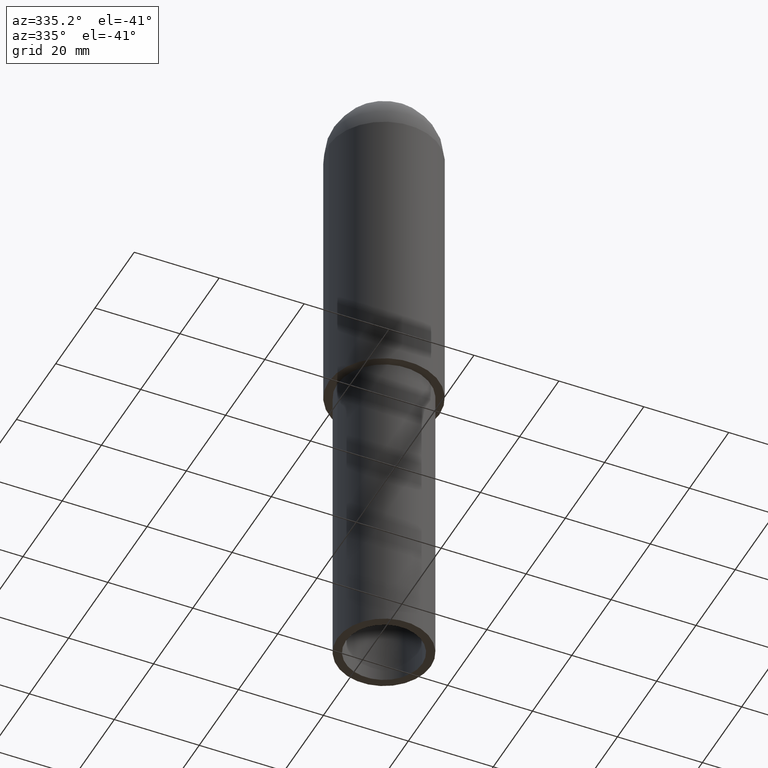
[diagram: clean part render]
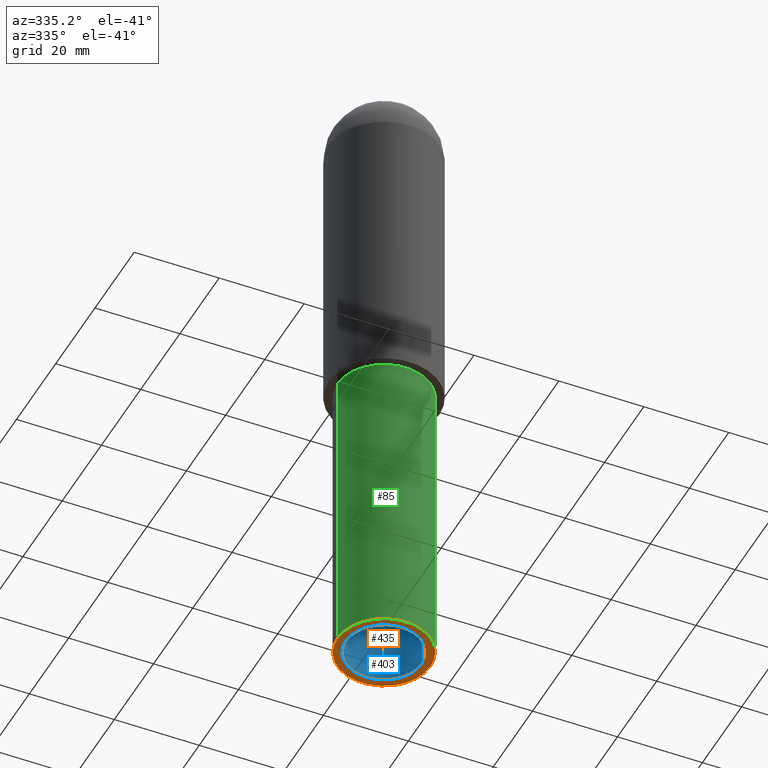
[diagram: same view with three faces highlighted in distinct colors, each labeled with its STEP entity id]
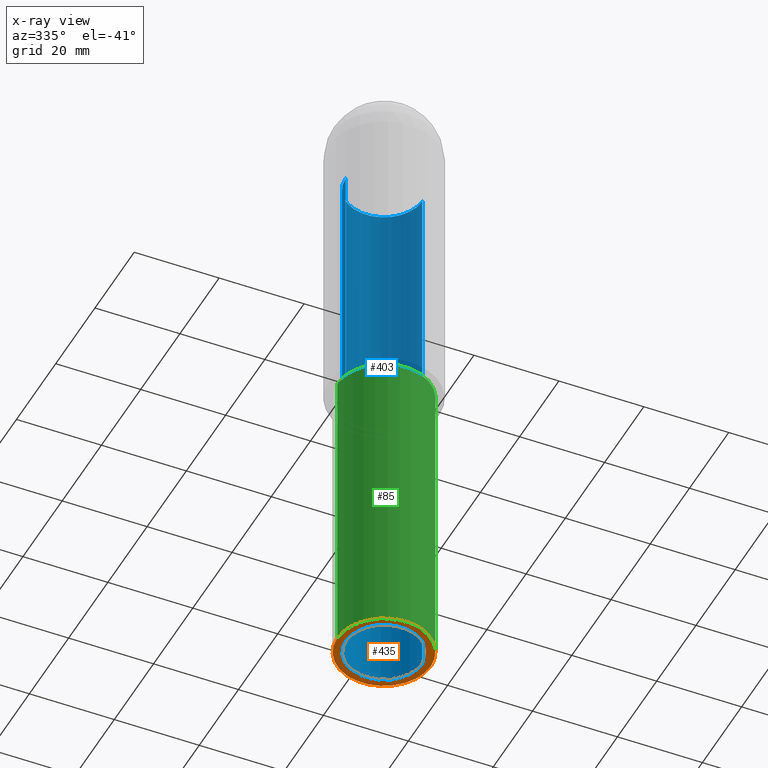
[diagram: x-ray of the same camera — body ghosted, the three highlighted faces saturated]
A machine part, auxiliary view with three faces highlighted in distinct colors.
The next image is the same camera in x-ray (body ghosted, the three faces saturated) — at least one of them is partly hidden behind the body in this view.
Their STEP definitions:

[orange] entity #435 — the highlighted planar face has unit normal (0, 0, -1).
#49=CARTESIAN_POINT('',(-6.716946060098080,-1.613904443833870,0.0));
#50=VERTEX_POINT('',#49);
#59=CARTESIAN_POINT('',(15.283053939901921,-1.613904443833870,0.0));
#60=VERTEX_POINT('',#59);
#61=CARTESIAN_POINT('',(4.283053939901920,-1.613904443833871,0.0));
#62=DIRECTION('',(0.0,0.0,-1.0));
#63=DIRECTION('',(-1.0,0.0,0.0));
#64=AXIS2_PLACEMENT_3D('',#61,#62,#63);
#65=CIRCLE('',#64,11.0);
#66=EDGE_CURVE('',#60,#50,#65,.T.);
#93=CARTESIAN_POINT('',(-4.716946060098080,-1.613904443833870,0.0));
#94=VERTEX_POINT('',#93);
#110=CARTESIAN_POINT('',(13.283053939901919,-1.613904443833870,0.0));
#111=VERTEX_POINT('',#110);
#118=CARTESIAN_POINT('',(4.283053939901920,-1.613904443833871,0.0));
#119=DIRECTION('',(0.0,0.0,1.0));
#120=DIRECTION('',(-1.0,0.0,0.0));
#121=AXIS2_PLACEMENT_3D('',#118,#119,#120);
#122=CIRCLE('',#121,9.0);
#123=EDGE_CURVE('',#94,#111,#122,.T.);
#392=CARTESIAN_POINT('',(4.283053939901920,-1.613904443833871,0.0));
#393=DIRECTION('',(0.0,0.0,1.0));
#394=DIRECTION('',(-1.0,0.0,0.0));
#395=AXIS2_PLACEMENT_3D('',#392,#393,#394);
#396=CIRCLE('',#395,9.0);
#397=EDGE_CURVE('',#111,#94,#396,.T.);
#412=CARTESIAN_POINT('',(4.283053939901920,-1.613904443833871,0.0));
#413=DIRECTION('',(0.0,0.0,-1.0));
#414=DIRECTION('',(-1.0,0.0,0.0));
#415=AXIS2_PLACEMENT_3D('',#412,#413,#414);
#416=CIRCLE('',#415,11.0);
#417=EDGE_CURVE('',#50,#60,#416,.T.);
#422=CARTESIAN_POINT('',(4.283053939901920,-1.613904443833871,0.0));
#423=DIRECTION('',(0.0,0.0,-1.0));
#424=DIRECTION('',(-1.0,0.0,0.0));
#425=AXIS2_PLACEMENT_3D('',#422,#423,#424);
#426=PLANE('',#425);
#427=ORIENTED_EDGE('',*,*,#66,.T.);
#428=ORIENTED_EDGE('',*,*,#417,.T.);
#429=EDGE_LOOP('',(#427,#428));
#430=FACE_OUTER_BOUND('',#429,.T.);
#431=ORIENTED_EDGE('',*,*,#397,.T.);
#432=ORIENTED_EDGE('',*,*,#123,.T.);
#433=EDGE_LOOP('',(#431,#432));
#434=FACE_BOUND('',#433,.T.);
#435=ADVANCED_FACE('',(#430,#434),#426,.T.);

[blue] entity #403 — the highlighted cylindrical surface (partial cylindrical patch) has radius 9 mm, axis along (0, 0, 1).
#91=CARTESIAN_POINT('',(-4.716946060098080,-1.613904443833870,131.0));
#92=VERTEX_POINT('',#91);
#93=CARTESIAN_POINT('',(-4.716946060098080,-1.613904443833870,0.0));
#94=VERTEX_POINT('',#93);
#95=CARTESIAN_POINT('',(-4.716946060098080,-1.613904443833870,131.0));
#96=DIRECTION('',(0.0,0.0,-1.0));
#97=VECTOR('',#96,131.0);
#98=LINE('',#95,#97);
#99=EDGE_CURVE('',#92,#94,#98,.T.);
#101=CARTESIAN_POINT('',(13.283053939901919,-1.613904443833870,131.0));
#102=VERTEX_POINT('',#101);
#110=CARTESIAN_POINT('',(13.283053939901919,-1.613904443833870,0.0));
#111=VERTEX_POINT('',#110);
#112=CARTESIAN_POINT('',(13.283053939901919,-1.613904443833870,0.0));
#113=DIRECTION('',(0.0,0.0,1.0));
#114=VECTOR('',#113,131.0);
#115=LINE('',#112,#114);
#116=EDGE_CURVE('',#111,#102,#115,.T.);
#375=CARTESIAN_POINT('',(4.283053939901920,-1.613904443833871,131.0));
#376=DIRECTION('',(0.0,0.0,1.0));
#377=DIRECTION('',(-1.0,0.0,0.0));
#378=AXIS2_PLACEMENT_3D('',#375,#376,#377);
#379=CIRCLE('',#378,9.0);
#380=EDGE_CURVE('',#102,#92,#379,.T.);
#386=CARTESIAN_POINT('',(4.283053939901920,-1.613904443833871,0.0));
#387=DIRECTION('',(0.0,0.0,1.0));
#388=DIRECTION('',(-1.0,0.0,0.0));
#389=AXIS2_PLACEMENT_3D('',#386,#387,#388);
#390=CYLINDRICAL_SURFACE('',#389,9.0);
#391=ORIENTED_EDGE('',*,*,#99,.T.);
#392=CARTESIAN_POINT('',(4.283053939901920,-1.613904443833871,0.0));
#393=DIRECTION('',(0.0,0.0,1.0));
#394=DIRECTION('',(-1.0,0.0,0.0));
#395=AXIS2_PLACEMENT_3D('',#392,#393,#394);
#396=CIRCLE('',#395,9.0);
#397=EDGE_CURVE('',#111,#94,#396,.T.);
#398=ORIENTED_EDGE('',*,*,#397,.F.);
#399=ORIENTED_EDGE('',*,*,#116,.T.);
#400=ORIENTED_EDGE('',*,*,#380,.T.);
#401=EDGE_LOOP('',(#391,#398,#399,#400));
#402=FACE_OUTER_BOUND('',#401,.T.);
#403=ADVANCED_FACE('',(#402),#390,.F.);

[green] entity #85 — the highlighted cylindrical surface (partial cylindrical patch) has radius 11 mm, axis along (0, 0, 1).
#44=CARTESIAN_POINT('',(4.283053939901920,-1.613904443833871,0.0));
#45=DIRECTION('',(0.0,0.0,1.0));
#46=DIRECTION('',(-1.0,0.0,0.0));
#47=AXIS2_PLACEMENT_3D('',#44,#45,#46);
#48=CYLINDRICAL_SURFACE('',#47,11.0);
#49=CARTESIAN_POINT('',(-6.716946060098080,-1.613904443833870,0.0));
#50=VERTEX_POINT('',#49);
#51=CARTESIAN_POINT('',(-6.716946060098080,-1.613904443833870,72.0));
#52=VERTEX_POINT('',#51);
#53=CARTESIAN_POINT('',(-6.716946060098080,-1.613904443833870,0.0));
#54=DIRECTION('',(0.0,0.0,1.0));
#55=VECTOR('',#54,72.0);
#56=LINE('',#53,#55);
#57=EDGE_CURVE('',#50,#52,#56,.T.);
#58=ORIENTED_EDGE('',*,*,#57,.F.);
#59=CARTESIAN_POINT('',(15.283053939901921,-1.613904443833870,0.0));
#60=VERTEX_POINT('',#59);
#61=CARTESIAN_POINT('',(4.283053939901920,-1.613904443833871,0.0));
#62=DIRECTION('',(0.0,0.0,-1.0));
#63=DIRECTION('',(-1.0,0.0,0.0));
#64=AXIS2_PLACEMENT_3D('',#61,#62,#63);
#65=CIRCLE('',#64,11.0);
#66=EDGE_CURVE('',#60,#50,#65,.T.);
#67=ORIENTED_EDGE('',*,*,#66,.F.);
#68=CARTESIAN_POINT('',(15.283053939901915,-1.613904443833868,72.0));
#69=VERTEX_POINT('',#68);
#70=CARTESIAN_POINT('',(15.283053939901915,-1.613904443833868,72.0));
#71=DIRECTION('',(0.0,0.0,-1.0));
#72=VECTOR('',#71,72.0);
#73=LINE('',#70,#72);
#74=EDGE_CURVE('',#69,#60,#73,.T.);
#75=ORIENTED_EDGE('',*,*,#74,.F.);
#76=CARTESIAN_POINT('',(4.283053939901920,-1.613904443833871,72.0));
#77=DIRECTION('',(0.0,0.0,-1.0));
#78=DIRECTION('',(-1.0,0.0,0.0));
#79=AXIS2_PLACEMENT_3D('',#76,#77,#78);
#80=CIRCLE('',#79,11.0);
#81=EDGE_CURVE('',#69,#52,#80,.T.);
#82=ORIENTED_EDGE('',*,*,#81,.T.);
#83=EDGE_LOOP('',(#58,#67,#75,#82));
#84=FACE_OUTER_BOUND('',#83,.T.);
#85=ADVANCED_FACE('',(#84),#48,.T.);